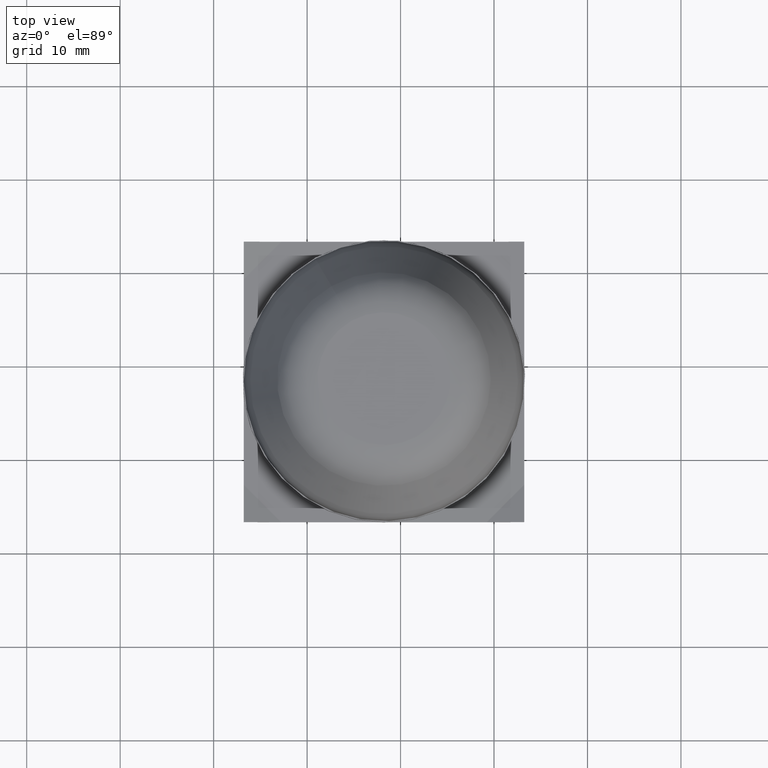
[diagram: clean part render]
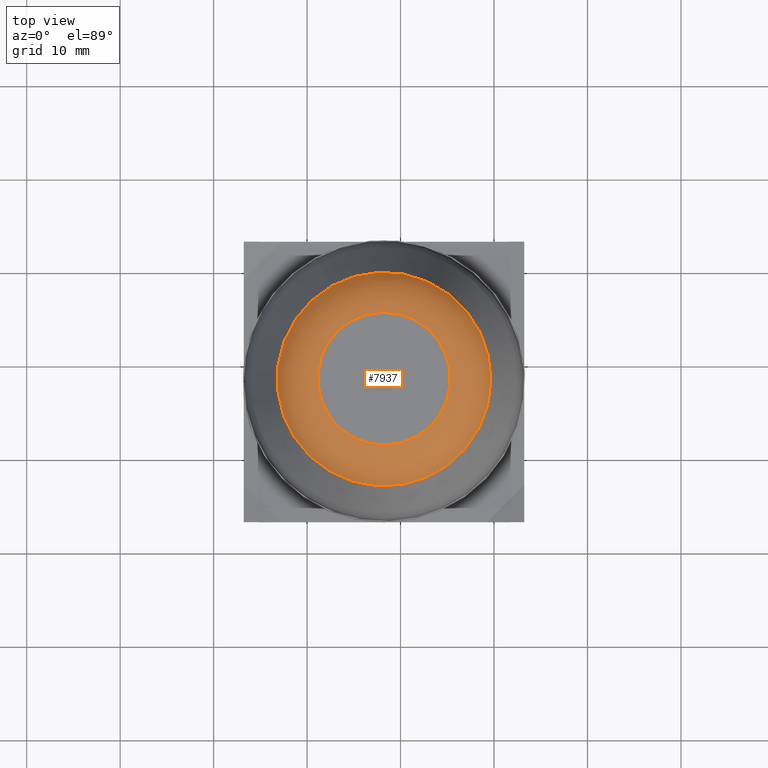
[diagram: same view with one face highlighted and labeled with its STEP entity id]
A machine part, top view. The second image highlights one B-rep face of the part: STEP entity #7937.
In plain terms, the highlighted toroidal blend (fillet) surface has major radius 7.1071 mm and minor (blend) radius 4.7727 mm.
Its self-contained STEP definition (entity closure, byte-faithful):
#461=TOROIDAL_SURFACE('',#28153,7.10707353240372,4.77272727272667);
#7937=ADVANCED_FACE('',(#10189,#10190),#461,.T.);
#10189=FACE_BOUND('',#10368,.T.);
#10190=FACE_BOUND('',#10369,.T.);
#10368=EDGE_LOOP('',(#12089));
#10369=EDGE_LOOP('',(#12090));
#12089=ORIENTED_EDGE('',*,*,#23003,.T.);
#12090=ORIENTED_EDGE('',*,*,#23002,.F.);
#20293=VERTEX_POINT('',#37865);
#20294=VERTEX_POINT('',#37868);
#23002=EDGE_CURVE('',#20293,#20293,#27101,.T.);
#23003=EDGE_CURVE('',#20294,#20294,#27102,.T.);
#27101=CIRCLE('',#28150,11.4326334250783);
#27102=CIRCLE('',#28152,7.10707353240343);
#28150=AXIS2_PLACEMENT_3D('',#37864,#30630,#30631);
#28152=AXIS2_PLACEMENT_3D('',#37867,#30634,#30635);
#28153=AXIS2_PLACEMENT_3D('',#37869,#30636,#30637);
#30630=DIRECTION('',(0.,0.,-1.));
#30631=DIRECTION('',(-0.491663097609794,0.870785506567916,0.));
#30634=DIRECTION('',(0.,0.,-1.));
#30635=DIRECTION('',(-0.491663097609794,0.870785506567916,0.));
#30636=DIRECTION('',(0.,0.,-1.));
#30637=DIRECTION('',(0.870785506567916,0.491663097609794,0.));
#37864=CARTESIAN_POINT('',(-1.77184302810665,-12.4,46.2443144310358));
#37865=CARTESIAN_POINT('',(-7.3928469917179,-2.44462851153795,46.2443144310358));
#37867=CARTESIAN_POINT('',(-1.77184302810665,-12.4,49.0000000000007));
#37868=CARTESIAN_POINT('',(-5.26612881598871,-6.21126337387065,49.0000000000007));
#37869=CARTESIAN_POINT('',(-1.77184302810665,-12.4,44.227272727274));